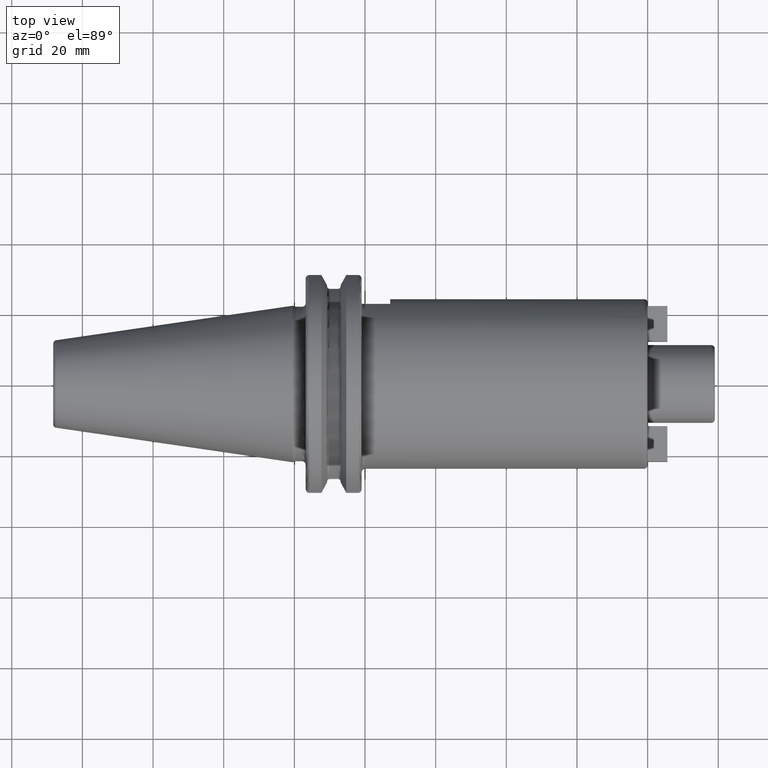
[diagram: clean part render]
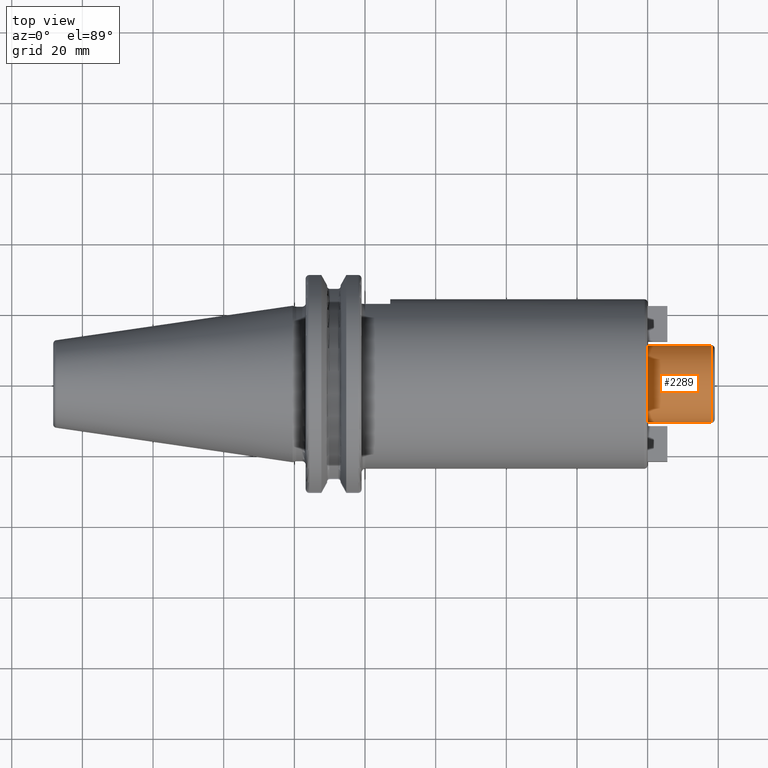
[diagram: same view with one face highlighted and labeled with its STEP entity id]
A machine part, top view. The second image highlights one B-rep face of the part: STEP entity #2289.
In plain terms, the highlighted cylindrical surface (partial cylindrical patch) has radius 11 mm, axis along (1, 0, 0).
Its self-contained STEP definition (entity closure, byte-faithful):
#355=CARTESIAN_POINT('',(1.E2,0.E0,0.E0));
#356=DIRECTION('',(1.E0,0.E0,0.E0));
#357=DIRECTION('',(0.E0,1.E0,0.E0));
#358=AXIS2_PLACEMENT_3D('',#355,#356,#357);
#407=CARTESIAN_POINT('',(1.18E2,0.E0,0.E0));
#408=DIRECTION('',(-1.E0,0.E0,0.E0));
#409=DIRECTION('',(0.E0,-1.E0,0.E0));
#410=AXIS2_PLACEMENT_3D('',#407,#408,#409);
#412=DIRECTION('',(-1.E0,0.E0,5.042854888970E-14));
#413=VECTOR('',#412,1.8E1);
#414=CARTESIAN_POINT('',(1.18E2,1.1E1,-9.068158056952E-13));
#415=LINE('',#414,#413);
#416=DIRECTION('',(-1.E0,0.E0,-5.013806566347E-14));
#417=VECTOR('',#416,1.8E1);
#418=CARTESIAN_POINT('',(1.18E2,-1.1E1,9.015871076231E-13));
#419=LINE('',#418,#417);
#1690=CARTESIAN_POINT('',(1.E2,1.1E1,0.E0));
#1691=CARTESIAN_POINT('',(1.E2,-1.1E1,0.E0));
#1692=VERTEX_POINT('',#1690);
#1693=VERTEX_POINT('',#1691);
#1706=CARTESIAN_POINT('',(1.18E2,1.1E1,-9.068158056952E-13));
#1707=VERTEX_POINT('',#1706);
#1708=CARTESIAN_POINT('',(1.18E2,-1.1E1,9.015871076231E-13));
#1709=VERTEX_POINT('',#1708);
#2275=CARTESIAN_POINT('',(1.40525E1,0.E0,0.E0));
#2276=DIRECTION('',(1.E0,0.E0,0.E0));
#2277=DIRECTION('',(0.E0,-1.E0,0.E0));
#2278=AXIS2_PLACEMENT_3D('',#2275,#2276,#2277);
#2279=CYLINDRICAL_SURFACE('',#2278,1.1E1);
#2281=ORIENTED_EDGE('',*,*,#2280,.F.);
#2283=ORIENTED_EDGE('',*,*,#2282,.F.);
#2285=ORIENTED_EDGE('',*,*,#2284,.T.);
#2286=ORIENTED_EDGE('',*,*,#2248,.F.);
#2287=EDGE_LOOP('',(#2281,#2283,#2285,#2286));
#2288=FACE_OUTER_BOUND('',#2287,.F.);
#2289=ADVANCED_FACE('',(#2288),#2279,.T.);
#359=CIRCLE('',#358,1.1E1);
#411=CIRCLE('',#410,1.1E1);
#2248=EDGE_CURVE('',#1692,#1693,#359,.T.);
#2280=EDGE_CURVE('',#1707,#1692,#415,.T.);
#2282=EDGE_CURVE('',#1709,#1707,#411,.T.);
#2284=EDGE_CURVE('',#1709,#1693,#419,.T.);